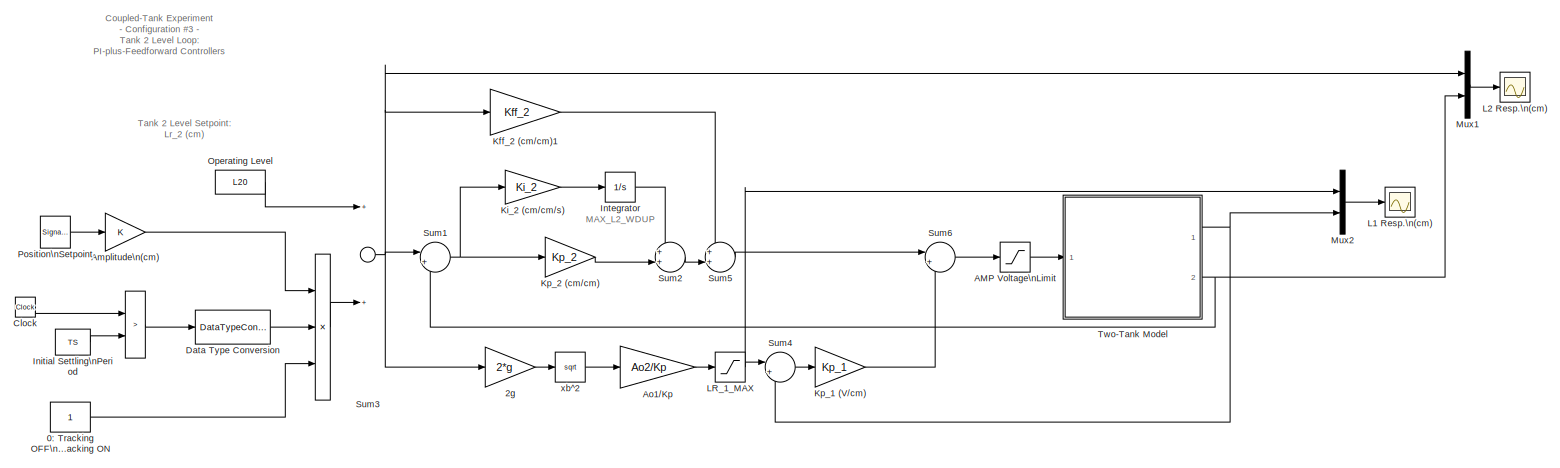
[diagram: root canvas - part 1/1, most of the canvas]
MODEL s_tanks_3
KIND model
BLOCK [Product]    
  Inputs = 3
  Ports = [3, 1]
  SID = 1
BLOCK [RelationalOperator]     
  Operator = >
  Ports = [2, 1]
  SID = 2
BLOCK [Constant] 0: Tracking OFF\n1: Tracking ON
  SID = 3
BLOCK [Gain] 2g
  Gain = 2*g
  SID = 4
BLOCK [Saturate] AMP Voltage\nLimit
  InputPortMap = u0
  LowerLimit = 0
  Ports = [1, 1]
  SID = 5
  UpperLimit = VMAX_AMP
BLOCK [Gain] Amplitude\n(cm)
  SID = 6
BLOCK [Gain] Ao1//Kp
  Gain = Ao2/Kp
  SID = 7
BLOCK [Clock] Clock
  SID = 8
BLOCK [DataTypeConversion] Data Type Conversion
  RndMeth = Floor
  SID = 9
  SaturateOnIntegerOverflow = off
BLOCK [Constant] Initial Settling\nPeriod
  SID = 10
  Value = TS
BLOCK [Integrator] Integrator
  LimitOutput = on
  LowerSaturationLimit = - MAX_L2_WDUP
  Ports = [1, 1]
  SID = 11
  UpperSaturationLimit = MAX_L2_WDUP
BLOCK [Gain] Kff_2 (cm//cm)1
  Gain = Kff_2
  SID = 12
BLOCK [Gain] Ki_2 (cm//cm//s)
  Gain = Ki_2
  SID = 13
BLOCK [Gain] Kp_1 (V//cm)
  Gain = Kp_1
  SID = 14
BLOCK [Gain] Kp_2 (cm//cm)
  Gain = Kp_2
  SID = 15
BLOCK [Scope] L1 Resp.\n(cm)
  Floating = off
  LimitDataPoints = off
  NumInputPorts = 1
  Ports = [1]
  SID = 16
  SampleTime = 0
  SaveName = data_L1
  SaveToWorkspace = on
  TickLabels = on
  TimeRange = 60
  YMax = 30
  YMin = 0
BLOCK [Scope] L2 Resp.\n(cm)
  Floating = off
  LimitDataPoints = off
  NumInputPorts = 1
  Ports = [1]
  SID = 17
  SampleTime = 0
  SaveName = data_L2
  SaveToWorkspace = on
  TickLabels = on
  TimeRange = 60
  YMax = 17
  YMin = 12
  ZoomMode = yonly
BLOCK [Saturate] LR_1_MAX
  InputPortMap = u0
  LowerLimit = 0
  Ports = [1, 1]
  SID = 18
  UpperLimit = LR_1_MAX
BLOCK [Mux] Mux1
  DisplayOption = bar
  Inputs = 2
  Ports = [2, 1]
  SID = 19
BLOCK [Mux] Mux2
  DisplayOption = bar
  Inputs = 2
  Ports = [2, 1]
  SID = 20
BLOCK [Constant] Operating Level
  SID = 21
  Value = L20
BLOCK [SignalGenerator] Position\nSetpoint
  Frequency = 0.018
  Ports = [0, 1]
  SID = 22
  WaveForm = square
BLOCK [Sum] Sum1
  IconShape = round
  Inputs = |+-
  Ports = [2, 1]
  SID = 23
BLOCK [Sum] Sum2
  IconShape = round
  Inputs = ++|
  Ports = [2, 1]
  SID = 24
BLOCK [Sum] Sum3
  Ports = [2, 1]
  SID = 25
BLOCK [Sum] Sum4
  IconShape = round
  Inputs = |+-
  Ports = [2, 1]
  SID = 26
BLOCK [Sum] Sum5
  IconShape = round
  Inputs = ++|
  Ports = [2, 1]
  SID = 27
BLOCK [Sum] Sum6
  IconShape = round
  Inputs = |++
  Ports = [2, 1]
  SID = 28
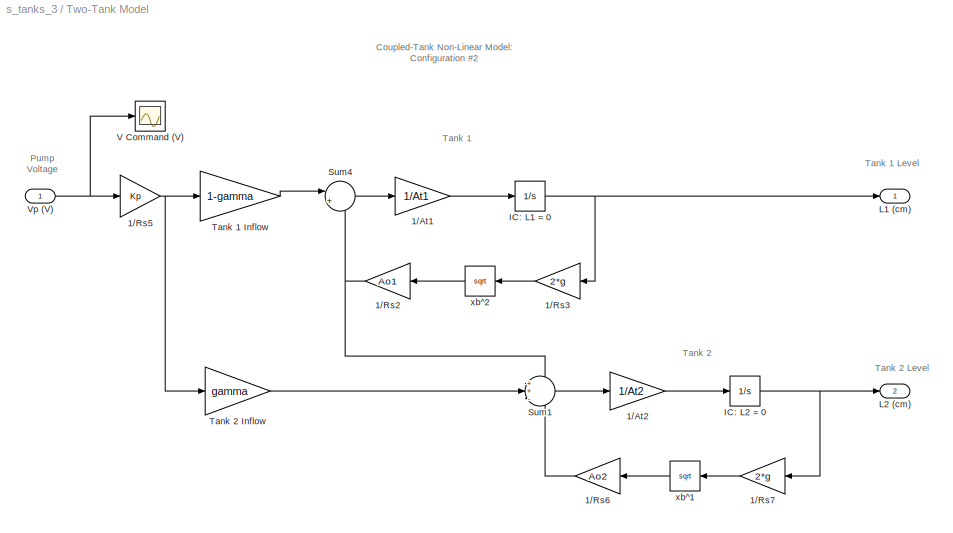
BLOCK [SubSystem] Two-Tank Model
  FunctionWithSeparateData = off
  MaskHideContents = off
  MinAlgLoopOccurrences = off
  Opaque = off
  Ports = [1, 2]
  PropExecContextOutsideSubsystem = off
  RTWSystemCode = Auto
  RequestExecContextInheritance = off
  SID = 29
BLOCK [Gain] Two-Tank Model/1//At1
  Gain = 1/At1
  SID = 31
BLOCK [Gain] Two-Tank Model/1//At2
  Gain = 1/At2
  SID = 32
BLOCK [Gain] Two-Tank Model/1//Rs2
  Gain = Ao1
  SID = 33
BLOCK [Gain] Two-Tank Model/1//Rs3
  Gain = 2*g
  SID = 34
BLOCK [Gain] Two-Tank Model/1//Rs5
  Gain = Kp
  SID = 35
BLOCK [Gain] Two-Tank Model/1//Rs6
  Gain = Ao2
  SID = 36
BLOCK [Gain] Two-Tank Model/1//Rs7
  Gain = 2*g
  SID = 37
BLOCK [Integrator] Two-Tank Model/IC: L1 = 0
  Ports = [1, 1]
  SID = 38
BLOCK [Integrator] Two-Tank Model/IC: L2 = 0
  Ports = [1, 1]
  SID = 39
BLOCK [Outport] Two-Tank Model/L1 (cm)
  IconDisplay = Port number
  InitialOutput = 0
  SID = 47
BLOCK [Outport] Two-Tank Model/L2 (cm)
  IconDisplay = Port number
  InitialOutput = 0
  Port = 2
  SID = 48
BLOCK [Sum] Two-Tank Model/Sum1
  IconShape = round
  Inputs = ++-
  Ports = [3, 1]
  SID = 40
BLOCK [Sum] Two-Tank Model/Sum4
  IconShape = round
  Inputs = |+-
  Ports = [2, 1]
  SID = 41
BLOCK [Gain] Two-Tank Model/Tank 1 Inflow
  Gain = 1-gamma
  OutDataTypeStr = Inherit: Inherit via internal rule
  ParamDataTypeStr = Inherit: Inherit via internal rule
  SID = 42
  SaturateOnIntegerOverflow = off
BLOCK [Gain] Two-Tank Model/Tank 2 Inflow
  Gain = gamma
  OutDataTypeStr = Inherit: Inherit via internal rule
  ParamDataTypeStr = Inherit: Inherit via internal rule
  SID = 43
  SaturateOnIntegerOverflow = off
BLOCK [Scope] Two-Tank Model/V Command (V)
  Floating = off
  NumInputPorts = 1
  Ports = [1]
  SID = 44
  SampleTime = 0
  SaveName = ScopeData2
  TickLabels = on
  TimeRange = 1.000000
  YMax = 1
  YMin = -1
BLOCK [Inport] Two-Tank Model/Vp (V)
  IconDisplay = Port number
  SID = 30
BLOCK [Math] Two-Tank Model/xb^1
  Operator = sqrt
  Ports = [1, 1]
  SID = 45
BLOCK [Math] Two-Tank Model/xb^2
  Operator = sqrt
  Ports = [1, 1]
  SID = 46
BLOCK [Math] xb^2
  Operator = sqrt
  Ports = [1, 1]
  SID = 55
ANNOTATION (root): Coupled-Tank Experiment\n- Configuration #3 -\nTank 2 Level Loop:\nPI-plus-Feedforward Controllers
ANNOTATION (root): MAX_L2_WDUP
ANNOTATION (root): Tank 2 Level Setpoint: \nLr_2 (cm)
ANNOTATION Two-Tank Model: Coupled-Tank Non-Linear Model:\nConfiguration #2
ANNOTATION Two-Tank Model: Pump\nVoltage
ANNOTATION Two-Tank Model: Tank 1
ANNOTATION Two-Tank Model: Tank 1 Level
ANNOTATION Two-Tank Model: Tank 2
ANNOTATION Two-Tank Model: Tank 2 Level
LINE     :1 -> Data Type Conversion:1
LINE    :1 -> Sum3:2
LINE 0: Tracking OFF\n1: Tracking ON:1 ->    :3
LINE 2g:1 -> xb^2:1
LINE AMP Voltage\nLimit:1 -> Two-Tank Model:1
LINE Amplitude\n(cm):1 ->    :1
LINE Ao1//Kp:1 -> LR_1_MAX:1
LINE Clock:1 ->     :1
LINE Data Type Conversion:1 ->    :2
LINE Initial Settling\nPeriod:1 ->     :2
LINE Integrator:1 -> Sum2:1
LINE Kff_2 (cm//cm)1:1 -> Sum5:1
LINE Ki_2 (cm//cm//s):1 -> Integrator:1
LINE Kp_1 (V//cm):1 -> Sum6:2
LINE Kp_2 (cm//cm):1 -> Sum2:2
NET LR_1_MAX:1 -> Mux2:1, Sum4:1
LINE Mux1:1 -> L2 Resp.\n(cm):1
LINE Mux2:1 -> L1 Resp.\n(cm):1
LINE Operating Level:1 -> Sum3:1
LINE Position\nSetpoint:1 -> Amplitude\n(cm):1
NET Sum1:1 -> Ki_2 (cm//cm//s):1, Kp_2 (cm//cm):1
LINE Sum2:1 -> Sum5:2
NET Sum3:1 -> 2g:1, Kff_2 (cm//cm)1:1, Mux1:1, Sum1:1
LINE Sum4:1 -> Kp_1 (V//cm):1
LINE Sum5:1 -> Sum6:1
LINE Sum6:1 -> AMP Voltage\nLimit:1
LINE Two-Tank Model/1//At1:1 -> Two-Tank Model/IC: L1 = 0:1
LINE Two-Tank Model/1//At2:1 -> Two-Tank Model/IC: L2 = 0:1
NET Two-Tank Model/1//Rs2:1 -> Two-Tank Model/Sum1:1, Two-Tank Model/Sum4:2
LINE Two-Tank Model/1//Rs3:1 -> Two-Tank Model/xb^2:1
NET Two-Tank Model/1//Rs5:1 -> Two-Tank Model/Tank 1 Inflow:1, Two-Tank Model/Tank 2 Inflow:1
LINE Two-Tank Model/1//Rs6:1 -> Two-Tank Model/Sum1:3
LINE Two-Tank Model/1//Rs7:1 -> Two-Tank Model/xb^1:1
NET Two-Tank Model/IC: L1 = 0:1 -> Two-Tank Model/1//Rs3:1, Two-Tank Model/L1 (cm):1
NET Two-Tank Model/IC: L2 = 0:1 -> Two-Tank Model/1//Rs7:1, Two-Tank Model/L2 (cm):1
LINE Two-Tank Model/Sum1:1 -> Two-Tank Model/1//At2:1
LINE Two-Tank Model/Sum4:1 -> Two-Tank Model/1//At1:1
LINE Two-Tank Model/Tank 1 Inflow:1 -> Two-Tank Model/Sum4:1
LINE Two-Tank Model/Tank 2 Inflow:1 -> Two-Tank Model/Sum1:2
NET Two-Tank Model/Vp (V):1 -> Two-Tank Model/1//Rs5:1, Two-Tank Model/V Command (V):1
LINE Two-Tank Model/xb^1:1 -> Two-Tank Model/1//Rs6:1
LINE Two-Tank Model/xb^2:1 -> Two-Tank Model/1//Rs2:1
NET Two-Tank Model:1 -> Mux2:2, Sum4:2
NET Two-Tank Model:2 -> Mux1:2, Sum1:2
LINE xb^2:1 -> Ao1//Kp:1
note: NET lines group one-source signal fan-out (src -> all destinations, sorted); 1:1 wires keep LINE
